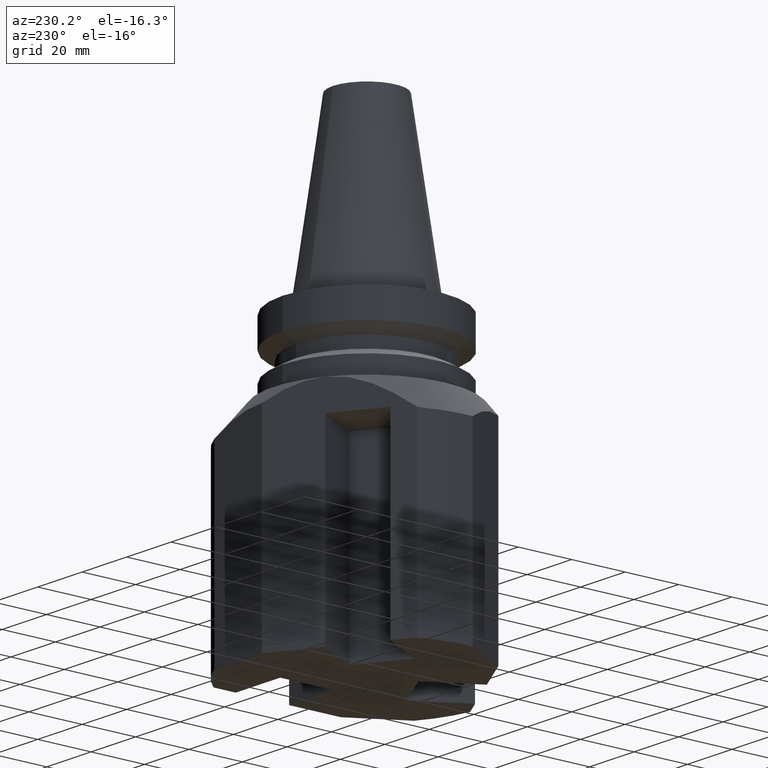
[diagram: clean part render]
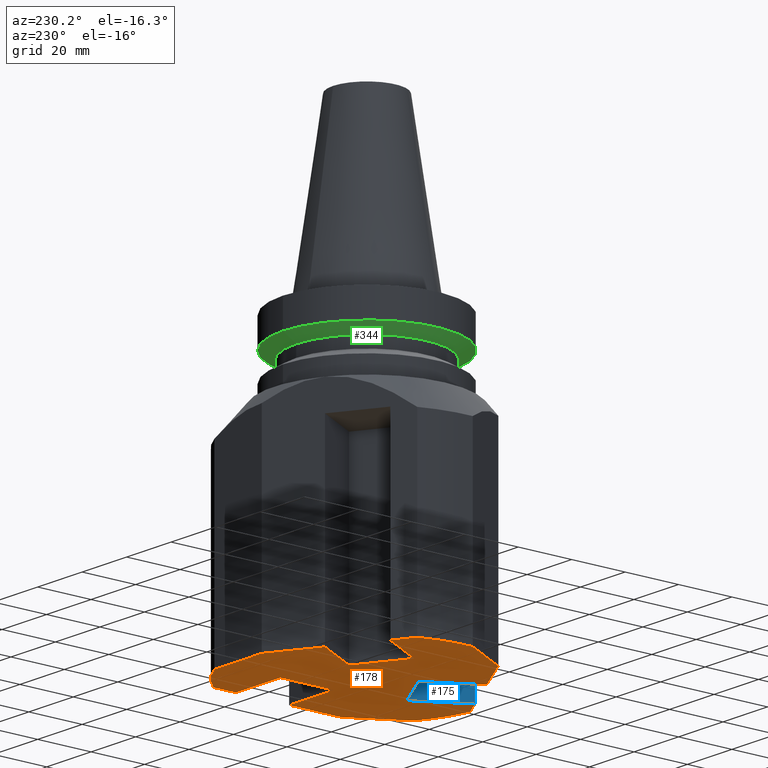
[diagram: same view with three faces highlighted in distinct colors, each labeled with its STEP entity id]
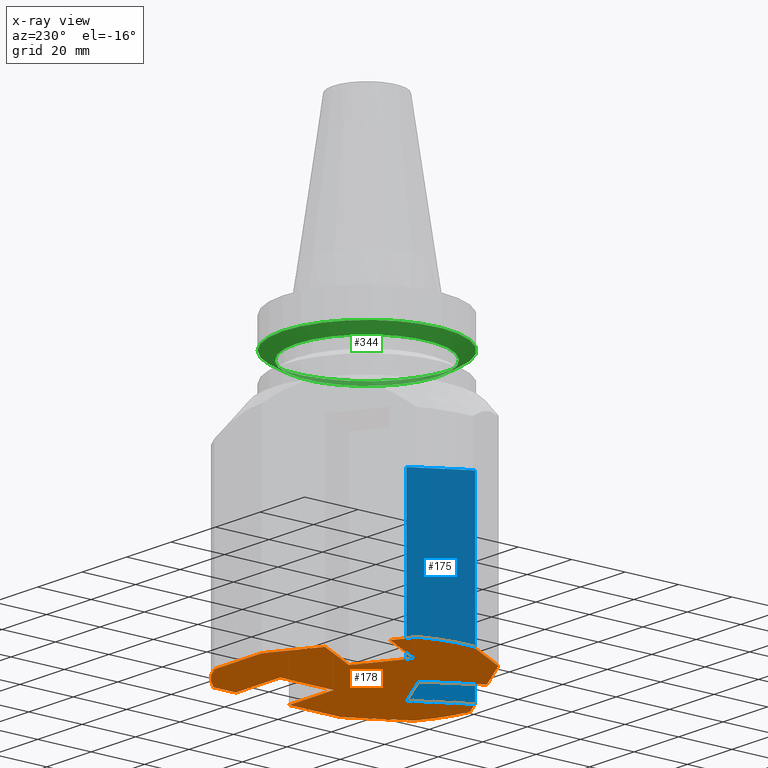
[diagram: x-ray of the same camera — body ghosted, the three highlighted faces saturated]
A machine part, auxiliary view with three faces highlighted in distinct colors.
The next image is the same camera in x-ray (body ghosted, the three faces saturated) — at least one of them is partly hidden behind the body in this view.
Their STEP definitions:

[orange] entity #178 — the highlighted planar face has unit normal (-0, -0, -1).
#141=EDGE_CURVE('Unnamed[1]',#427,#428,#429,.T.);
#151=EDGE_CURVE('Unnamed[1]',#447,#448,#449,.T.);
#158=EDGE_CURVE('Unnamed[1]',#444,#427,#458,.T.);
#160=EDGE_CURVE('Unnamed[1]',#428,#460,#461,.T.);
#164=EDGE_CURVE('Unnamed[1]',#466,#467,#468,.T.);
#168=EDGE_CURVE('Unnamed[1]',#473,#474,#475,.T.);
#178=ADVANCED_FACE('Unnamed[1]',(#489),#490,.T.);
#189=EDGE_CURVE('Unnamed[1]',#448,#505,#506,.T.);
#216=EDGE_CURVE('Unnamed[1]',#546,#547,#548,.T.);
#224=EDGE_CURVE('Unnamed[1]',#561,#466,#562,.T.);
#251=EDGE_CURVE('Unnamed[1]',#599,#600,#601,.T.);
#253=EDGE_CURVE('Unnamed[1]',#603,#505,#604,.T.);
#257=EDGE_CURVE('Unnamed[1]',#467,#570,#609,.T.);
#288=EDGE_CURVE('Unnamed[1]',#570,#599,#648,.T.);
#290=EDGE_CURVE('Unnamed[1]',#435,#447,#650,.T.);
#306=EDGE_CURVE('Unnamed[1]',#444,#600,#668,.T.);
#315=EDGE_CURVE('Unnamed[1]',#473,#440,#678,.T.);
#336=EDGE_CURVE('Unnamed[1]',#547,#474,#704,.T.);
#351=EDGE_CURVE('Unnamed[1]',#724,#435,#725,.T.);
#358=EDGE_CURVE('Unnamed[1]',#603,#561,#734,.T.);
#386=EDGE_CURVE('Unnamed[1]',#440,#724,#768,.T.);
#403=EDGE_CURVE('Unnamed[1]',#460,#546,#790,.T.);
#427=VERTEX_POINT('',#805);
#428=VERTEX_POINT('',#806);
#429=LINE('',#807,#808);
#435=VERTEX_POINT('',#816);
#440=VERTEX_POINT('',#823);
#444=VERTEX_POINT('',#829);
#447=VERTEX_POINT('',#834);
#448=VERTEX_POINT('',#835);
#449=LINE('',#836,#837);
#458=LINE('',#850,#851);
#460=VERTEX_POINT('',#854);
#461=LINE('',#855,#856);
#466=VERTEX_POINT('',#863);
#467=VERTEX_POINT('',#864);
#468=LINE('',#865,#866);
#473=VERTEX_POINT('',#882);
#474=VERTEX_POINT('',#883);
#475=CIRCLE('',#884,45.0000000000001);
#489=FACE_OUTER_BOUND('',#903,.T.);
#490=PLANE('',#904);
#505=VERTEX_POINT('',#923);
#506=LINE('',#924,#925);
#546=VERTEX_POINT('',#979);
#547=VERTEX_POINT('',#980);
#548=LINE('',#981,#982);
#561=VERTEX_POINT('',#1010);
#562=LINE('',#1011,#1012);
#570=VERTEX_POINT('',#1023);
#599=VERTEX_POINT('',#1063);
#600=VERTEX_POINT('',#1064);
#601=LINE('',#1065,#1066);
#603=VERTEX_POINT('',#1069);
#604=CIRCLE('',#1070,45.0000000000001);
#609=LINE('',#1077,#1078);
#648=LINE('',#1165,#1166);
#650=LINE('',#1169,#1170);
#668=CIRCLE('',#1197,45.0000000000001);
#678=LINE('',#1213,#1214);
#704=LINE('',#1269,#1270);
#724=VERTEX_POINT('',#1305);
#725=LINE('',#1306,#1307);
#734=LINE('',#1319,#1320);
#768=LINE('',#1378,#1379);
#790=LINE('',#1411,#1412);
#805=CARTESIAN_POINT('',(-0.179491924310843,-40.3108891324556,-109.999999999999));
#806=CARTESIAN_POINT('',(9.82050807568889,-22.9903810567669,-110.0));
#807=CARTESIAN_POINT('',(15.8169009719766,-12.6043238982513,-110.0));
#808=VECTOR('',#1426,1.0);
#816=CARTESIAN_POINT('',(-7.50000000000006,12.9903810567661,-110.0));
#823=CARTESIAN_POINT('',(-34.8205080756889,20.3108891324547,-110.0));
#829=CARTESIAN_POINT('',(6.99489742783161,-44.4530247561868,-109.999999999999));
#834=CARTESIAN_POINT('',(-17.4999999999995,30.310889132454,-110.0));
#835=CARTESIAN_POINT('',(-0.717967697240159,40.0000000000001,-110.0));
#836=CARTESIAN_POINT('',(-14.5568233849796,32.0101329434082,-110.0));
#837=VECTOR('',#1433,1.0);
#850=CARTESIAN_POINT('',(-20.4431766150211,-28.6116453214988,-110.0));
#851=VECTOR('',#1443,1.0);
#854=CARTESIAN_POINT('',(-7.50000000000007,-12.9903810567671,-110.0));
#855=CARTESIAN_POINT('',(-8.04126587736539,-12.6778810567671,-110.0));
#856=VECTOR('',#1444,1.0);
#863=CARTESIAN_POINT('',(14.9999999999999,19.9999999999995,-110.0));
#864=CARTESIAN_POINT('',(14.9999999999999,-5.01815325208583E-013,-110.0));
#865=CARTESIAN_POINT('',(14.9999999999999,16.2500000000001,-110.0));
#866=VECTOR('',#1448,1.0);
#882=CARTESIAN_POINT('',(-41.9948974278317,16.1687535087243,-110.0));
#883=CARTESIAN_POINT('',(-44.9487802154216,-2.14642892864795,-110.0));
#884=AXIS2_PLACEMENT_3D('',#1449,#1450,#1451);
#903=EDGE_LOOP('',(#1465,#1466,#1467,#1468,#1469,#1470,#1471,#1472,#1473,#1474,#1475,#1476,#1477,#1478,#1479,#1480,#1481,#1482,#1483,#1484,#1485));
#904=AXIS2_PLACEMENT_3D('',#1486,#1487,#1488);
#923=CARTESIAN_POINT('',(20.6155281280879,39.9999999999997,-110.0));
#924=CARTESIAN_POINT('',(4.97439010771223,39.9999999999999,-110.0));
#925=VECTOR('',#1512,1.0);
#979=CARTESIAN_POINT('',(-17.4999999999993,-30.3108891324544,-110.0));
#980=CARTESIAN_POINT('',(-34.2820323027618,-20.6217782649042,-110.0));
#981=CARTESIAN_POINT('',(-20.4431766150211,-28.6116453214988,-110.0));
#982=VECTOR('',#1559,1.0);
#1010=CARTESIAN_POINT('',(35.0000000000004,19.9999999999995,-110.0));
#1011=CARTESIAN_POINT('',(12.7500000000001,19.9999999999995,-110.0));
#1012=VECTOR('',#1562,1.0);
#1023=CARTESIAN_POINT('',(35.0000000000001,-5.13051680177337E-013,-110.0));
#1063=CARTESIAN_POINT('',(34.9999999999998,-19.3782217350857,-110.0));
#1064=CARTESIAN_POINT('',(24.3332520873304,-37.8535710713595,-110.0));
#1065=CARTESIAN_POINT('',(37.0252139938079,-15.8704482016106,-110.0));
#1066=VECTOR('',#1599,1.0);
#1069=CARTESIAN_POINT('',(35.0000000000005,28.2842712474607,-110.0));
#1070=AXIS2_PLACEMENT_3D('',#1600,#1601,#1602);
#1077=CARTESIAN_POINT('',(12.75,-5.01324449114228E-013,-110.0));
#1078=VECTOR('',#1606,1.0);
#1165=CARTESIAN_POINT('',(35.0000000000003,13.4765123780938,-110.0));
#1166=VECTOR('',#1638,1.0);
#1169=CARTESIAN_POINT('',(-11.2463928962876,19.4793238982514,-110.0));
#1170=VECTOR('',#1639,1.0);
#1197=AXIS2_PLACEMENT_3D('',#1664,#1665,#1666);
#1213=CARTESIAN_POINT('',(-14.5568233849796,32.0101329434082,-110.0));
#1214=VECTOR('',#1677,1.0);
#1269=CARTESIAN_POINT('',(-41.9996041015234,-7.25455179838826,-110.0));
#1270=VECTOR('',#1713,1.0);
#1305=CARTESIAN_POINT('',(-24.8205080756888,2.99038105676606,-110.0));
#1306=CARTESIAN_POINT('',(-6.95873412263453,13.3028810567663,-110.0));
#1307=VECTOR('',#1745,1.0);
#1319=CARTESIAN_POINT('',(35.0000000000003,13.4765123780938,-110.0));
#1320=VECTOR('',#1754,1.0);
#1378=CARTESIAN_POINT('',(-28.5669009719765,9.47932389825138,-110.0));
#1379=VECTOR('',#1804,1.0);
#1411=CARTESIAN_POINT('',(-1.50360710371211,-2.60432389825131,-110.0));
#1412=VECTOR('',#1833,1.0);
#1426=DIRECTION('',(0.49999999999999,0.866025403784444,-4.21043542479105E-015));
#1433=DIRECTION('',(0.866025403784461,0.499999999999961,-2.74906859752594E-015));
#1443=DIRECTION('',(-0.86602540378441,0.500000000000051,-1.79455088267394E-015));
#1444=DIRECTION('',(-0.866025403784445,0.499999999999988,-1.79455088267363E-015));
#1448=DIRECTION('',(-3.67394039744204E-016,-1.0,4.5436194801998E-015));
#1449=CARTESIAN_POINT('',(-6.06200165577939E-014,-4.11136731520577E-014,-110.0));
#1450=DIRECTION('',(5.51091059616309E-016,2.69934471944583E-016,1.0));
#1451=DIRECTION('',(3.67394039744206E-016,1.0,-2.69934471944583E-016));
#1465=ORIENTED_EDGE('',*,*,#141,.T.);
#1466=ORIENTED_EDGE('',*,*,#160,.T.);
#1467=ORIENTED_EDGE('',*,*,#403,.T.);
#1468=ORIENTED_EDGE('',*,*,#216,.T.);
#1469=ORIENTED_EDGE('',*,*,#336,.T.);
#1470=ORIENTED_EDGE('',*,*,#168,.F.);
#1471=ORIENTED_EDGE('',*,*,#315,.T.);
#1472=ORIENTED_EDGE('',*,*,#386,.T.);
#1473=ORIENTED_EDGE('',*,*,#351,.T.);
#1474=ORIENTED_EDGE('',*,*,#290,.T.);
#1475=ORIENTED_EDGE('',*,*,#151,.T.);
#1476=ORIENTED_EDGE('',*,*,#189,.T.);
#1477=ORIENTED_EDGE('',*,*,#253,.F.);
#1478=ORIENTED_EDGE('',*,*,#358,.T.);
#1479=ORIENTED_EDGE('',*,*,#224,.T.);
#1480=ORIENTED_EDGE('',*,*,#164,.T.);
#1481=ORIENTED_EDGE('',*,*,#257,.T.);
#1482=ORIENTED_EDGE('',*,*,#288,.T.);
#1483=ORIENTED_EDGE('',*,*,#251,.T.);
#1484=ORIENTED_EDGE('',*,*,#306,.F.);
#1485=ORIENTED_EDGE('',*,*,#158,.T.);
#1486=CARTESIAN_POINT('',(-5.23536506635492E-014,22.5,-110.0));
#1487=DIRECTION('',(-5.51091059616311E-016,-4.5436194801998E-015,-1.0));
#1488=DIRECTION('',(-3.67394039744204E-016,-1.0,4.5436194801998E-015));
#1512=DIRECTION('',(1.0,-3.76706035356049E-014,-5.51091059616139E-016));
#1559=DIRECTION('',(-0.86602540378441,0.500000000000051,-1.79455088267394E-015));
#1562=DIRECTION('',(-1.0,3.24340035115407E-015,5.51091059616296E-016));
#1599=DIRECTION('',(-0.500000000000004,-0.866025403784436,4.21043542479102E-015));
#1600=CARTESIAN_POINT('',(-6.06200165577939E-014,-4.11136731520577E-014,-110.0));
#1601=DIRECTION('',(5.51091059616309E-016,2.69934471944583E-016,1.0));
#1602=DIRECTION('',(3.67394039744206E-016,1.0,-2.69934471944583E-016));
#1606=DIRECTION('',(1.0,-6.12323399573682E-016,-5.51091059616308E-016));
#1638=DIRECTION('',(-1.58715021748581E-014,-1.0,4.54361948019981E-015));
#1639=DIRECTION('',(-0.499999999999997,0.86602540378444,-3.65934436517472E-015));
#1664=CARTESIAN_POINT('',(-6.06200165577939E-014,-4.11136731520577E-014,-110.0));
#1665=DIRECTION('',(5.51091059616309E-016,2.69934471944583E-016,1.0));
#1666=DIRECTION('',(3.67394039744206E-016,1.0,-2.69934471944583E-016));
#1677=DIRECTION('',(0.866025403784461,0.499999999999961,-2.74906859752594E-015));
#1713=DIRECTION('',(-0.499999999999995,0.866025403784441,-3.65934436517473E-015));
#1745=DIRECTION('',(0.866025403784436,0.500000000000004,-2.74906859752613E-015));
#1754=DIRECTION('',(-1.58715021748581E-014,-1.0,4.54361948019981E-015));
#1804=DIRECTION('',(0.500000000000008,-0.866025403784434,3.65934436517469E-015));
#1833=DIRECTION('',(-0.500000000000003,-0.866025403784437,4.21043542479102E-015));

[blue] entity #175 — the highlighted planar face has unit normal (0.866, -0.5, -0).
#141=EDGE_CURVE('Unnamed[1]',#427,#428,#429,.T.);
#172=EDGE_CURVE('Unnamed[1]',#480,#481,#482,.T.);
#175=ADVANCED_FACE('Unnamed[1]',(#485),#486,.F.);
#261=EDGE_CURVE('Unnamed[1]',#428,#480,#615,.T.);
#401=EDGE_CURVE('Unnamed[1]',#481,#427,#788,.T.);
#427=VERTEX_POINT('',#805);
#428=VERTEX_POINT('',#806);
#429=LINE('',#807,#808);
#480=VERTEX_POINT('',#891);
#481=VERTEX_POINT('',#892);
#482=LINE('',#893,#894);
#485=FACE_OUTER_BOUND('',#898,.T.);
#486=PLANE('',#899);
#615=LINE('',#1095,#1096);
#788=LINE('',#1407,#1408);
#805=CARTESIAN_POINT('',(-0.179491924310843,-40.3108891324556,-109.999999999999));
#806=CARTESIAN_POINT('',(9.82050807568889,-22.9903810567669,-110.0));
#807=CARTESIAN_POINT('',(15.8169009719766,-12.6043238982513,-110.0));
#808=VECTOR('',#1426,1.0);
#891=CARTESIAN_POINT('',(9.82050807568893,-22.9903810567669,-39.9999999999998));
#892=CARTESIAN_POINT('',(-0.179491924310797,-40.3108891324556,-39.9999999999998));
#893=CARTESIAN_POINT('',(9.82050807568893,-22.9903810567669,-39.9999999999998));
#894=VECTOR('',#1455,1.0);
#898=EDGE_LOOP('',(#1457,#1458,#1459,#1460));
#899=AXIS2_PLACEMENT_3D('',#1461,#1462,#1463);
#1095=CARTESIAN_POINT('',(9.8205080756888,-22.9903810567669,-279.0));
#1096=VECTOR('',#1607,1.0);
#1407=CARTESIAN_POINT('',(-0.179491924310923,-40.3108891324556,-279.0));
#1408=VECTOR('',#1832,1.0);
#1426=DIRECTION('',(0.49999999999999,0.866025403784444,-4.21043542479105E-015));
#1455=DIRECTION('',(-0.49999999999999,-0.866025403784444,3.8160305368064E-016));
#1457=ORIENTED_EDGE('',*,*,#401,.F.);
#1458=ORIENTED_EDGE('',*,*,#172,.F.);
#1459=ORIENTED_EDGE('',*,*,#261,.F.);
#1460=ORIENTED_EDGE('',*,*,#141,.F.);
#1461=CARTESIAN_POINT('',(4.57050807568894,-32.0836477965035,-279.0));
#1462=DIRECTION('',(0.866025403784444,-0.49999999999999,-4.16026517468845E-016));
#1463=DIRECTION('',(0.49999999999999,0.866025403784444,-3.8160305368064E-016));
#1607=DIRECTION('',(5.51091059616309E-016,1.22464679914735E-016,1.0));
#1832=DIRECTION('',(-5.51091059616309E-016,-1.22464679914735E-016,-1.0));

[green] entity #344 — the highlighted conical surface has half-angle 60 deg.
#207=EDGE_CURVE('Unnamed[1]',#533,#533,#534,.T.);
#209=EDGE_CURVE('Unnamed[1]',#536,#536,#537,.T.);
#344=ADVANCED_FACE('Unnamed[1]',(#713,#714),#715,.T.);
#533=VERTEX_POINT('',#961);
#534=CIRCLE('',#962,31.5);
#536=VERTEX_POINT('',#965);
#537=CIRCLE('',#966,26.5);
#713=FACE_BOUND('',#1291,.T.);
#714=FACE_BOUND('',#1292,.T.);
#715=CONICAL_SURFACE('',#1293,29.0,1.0471975511966);
#961=CARTESIAN_POINT('',(5.18025596039339E-015,31.5,-11.5999999999999));
#962=AXIS2_PLACEMENT_3D('',#1543,#1544,#1545);
#965=CARTESIAN_POINT('',(1.75242290358499E-015,26.5,-14.486751345948));
#966=AXIS2_PLACEMENT_3D('',#1546,#1547,#1548);
#1291=EDGE_LOOP('',(#1729));
#1292=EDGE_LOOP('',(#1730));
#1293=AXIS2_PLACEMENT_3D('',#1731,#1732,#1733);
#1543=CARTESIAN_POINT('',(-6.39265629154911E-015,-1.455212111271E-014,-11.5999999999999));
#1544=DIRECTION('',(5.51091059616309E-016,2.69934471944582E-016,1.0));
#1545=DIRECTION('',(3.67394039744206E-016,1.0,-2.69934471944583E-016));
#1546=CARTESIAN_POINT('',(-7.98351914963647E-015,-1.53313548129138E-014,-14.486751345948));
#1547=DIRECTION('',(5.51091059616309E-016,2.69934471944637E-016,1.0));
#1548=DIRECTION('',(3.67394039744206E-016,1.0,-2.69934471944637E-016));
#1729=ORIENTED_EDGE('',*,*,#207,.F.);
#1730=ORIENTED_EDGE('',*,*,#209,.T.);
#1731=CARTESIAN_POINT('',(-7.18808772059279E-015,-1.49417379628119E-014,-13.0433756729739));
#1732=DIRECTION('',(5.51091059616309E-016,2.69934471944607E-016,1.0));
#1733=DIRECTION('',(3.67394039744206E-016,1.0,-2.69934471944608E-016));